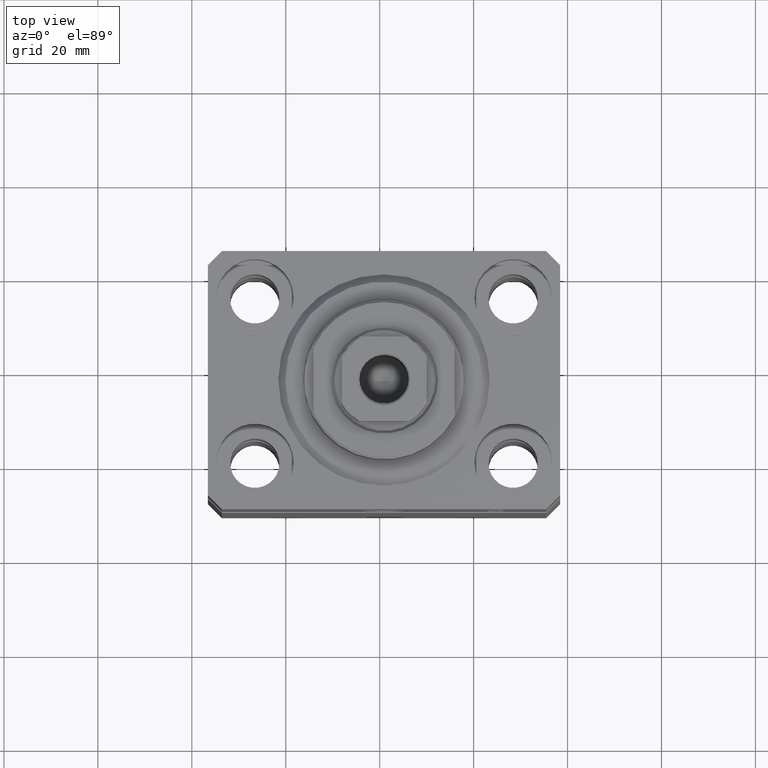
[diagram: clean part render]
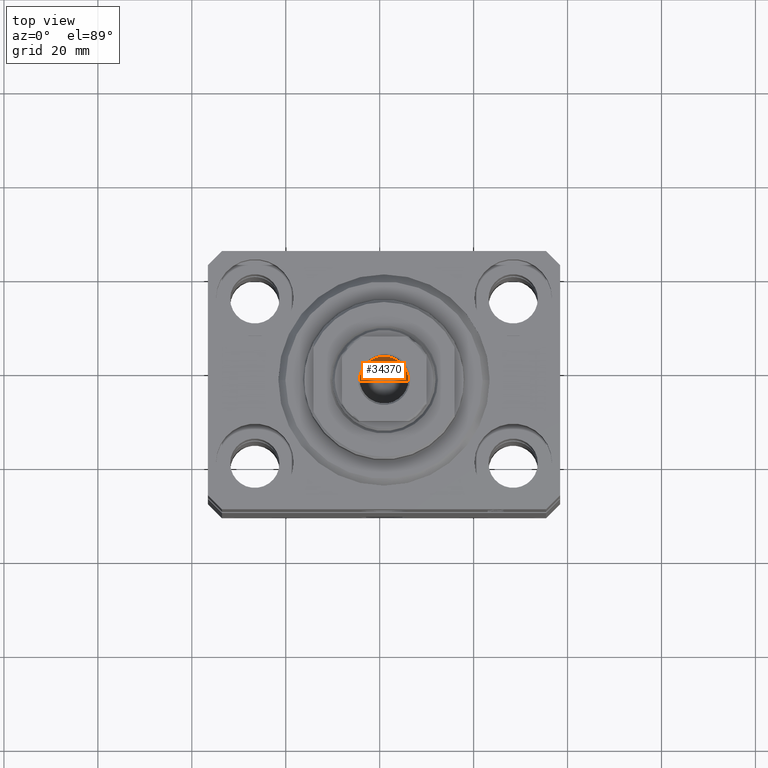
[diagram: same view with one face highlighted and labeled with its STEP entity id]
A machine part, top view. The second image highlights one B-rep face of the part: STEP entity #34370.
In plain terms, the highlighted conical surface has half-angle 59 deg.
Its self-contained STEP definition (entity closure, byte-faithful):
#798 = AXIS2_PLACEMENT_3D ( 'NONE', #16317, #43496, #12968 ) ;
#1338 = ORIENTED_EDGE ( 'NONE', *, *, #2672, .T. ) ;
#2672 = EDGE_CURVE ( 'NONE', #40343, #37953, #4075, .T. ) ;
#2818 = DIRECTION ( 'NONE',  ( -0.000000000000000000, -0.000000000000000000, 1.000000000000000000 ) ) ;
#2893 = AXIS2_PLACEMENT_3D ( 'NONE', #43154, #2818, #30027 ) ;
#4075 = LINE ( 'NONE', #17233, #10266 ) ;
#4589 = CARTESIAN_POINT ( 'NONE',  ( -6.783656367213677939E-15, 0.000000000000000000, 86.84548175010529292 ) ) ;
#8059 = ORIENTED_EDGE ( 'NONE', *, *, #35754, .F. ) ;
#8548 = LINE ( 'NONE', #15233, #43513 ) ;
#10045 = CONICAL_SURFACE ( 'NONE', #798, 5.249999999999994671, 1.029744258676652757 ) ;
#10266 = VECTOR ( 'NONE', #20137, 1000.000000000000000 ) ;
#12968 = DIRECTION ( 'NONE',  ( 1.000000000000000000, 0.000000000000000000, 0.000000000000000000 ) ) ;
#13779 = CARTESIAN_POINT ( 'NONE',  ( 5.249999999999994671, 0.000000000000000000, 90.00000000000000000 ) ) ;
#15233 = CARTESIAN_POINT ( 'NONE',  ( -5.249999999999994671, 6.429395695523597250E-16, 90.00000000000000000 ) ) ;
#16317 = CARTESIAN_POINT ( 'NONE',  ( 0.000000000000000000, 0.000000000000000000, 90.00000000000000000 ) ) ;
#17199 = FACE_OUTER_BOUND ( 'NONE', #38362, .T. ) ;
#17233 = CARTESIAN_POINT ( 'NONE',  ( 5.249999999999994671, 0.000000000000000000, 90.00000000000000000 ) ) ;
#20137 = DIRECTION ( 'NONE',  ( 0.8571673007021114454, 0.000000000000000000, 0.5150380749100555988 ) ) ;
#27107 = EDGE_CURVE ( 'NONE', #37953, #37078, #31371, .T. ) ;
#30027 = DIRECTION ( 'NONE',  ( 1.000000000000000000, 0.000000000000000000, 0.000000000000000000 ) ) ;
#30211 = ORIENTED_EDGE ( 'NONE', *, *, #27107, .T. ) ;
#31371 = CIRCLE ( 'NONE', #2893, 5.249999999999994671 ) ;
#34370 = ADVANCED_FACE ( 'NONE', ( #17199 ), #10045, .F. ) ;
#35754 = EDGE_CURVE ( 'NONE', #40343, #37078, #8548, .T. ) ;
#37078 = VERTEX_POINT ( 'NONE', #43604 ) ;
#37953 = VERTEX_POINT ( 'NONE', #13779 ) ;
#38362 = EDGE_LOOP ( 'NONE', ( #8059, #1338, #30211 ) ) ;
#38624 = DIRECTION ( 'NONE',  ( -0.8571673007021114454, 1.049727191138617586E-16, 0.5150380749100555988 ) ) ;
#40343 = VERTEX_POINT ( 'NONE', #4589 ) ;
#43154 = CARTESIAN_POINT ( 'NONE',  ( 0.000000000000000000, 0.000000000000000000, 90.00000000000000000 ) ) ;
#43496 = DIRECTION ( 'NONE',  ( -0.000000000000000000, -0.000000000000000000, 1.000000000000000000 ) ) ;
#43513 = VECTOR ( 'NONE', #38624, 1000.000000000000000 ) ;
#43604 = CARTESIAN_POINT ( 'NONE',  ( -5.249999999999994671, 6.429395695523597250E-16, 90.00000000000000000 ) ) ;